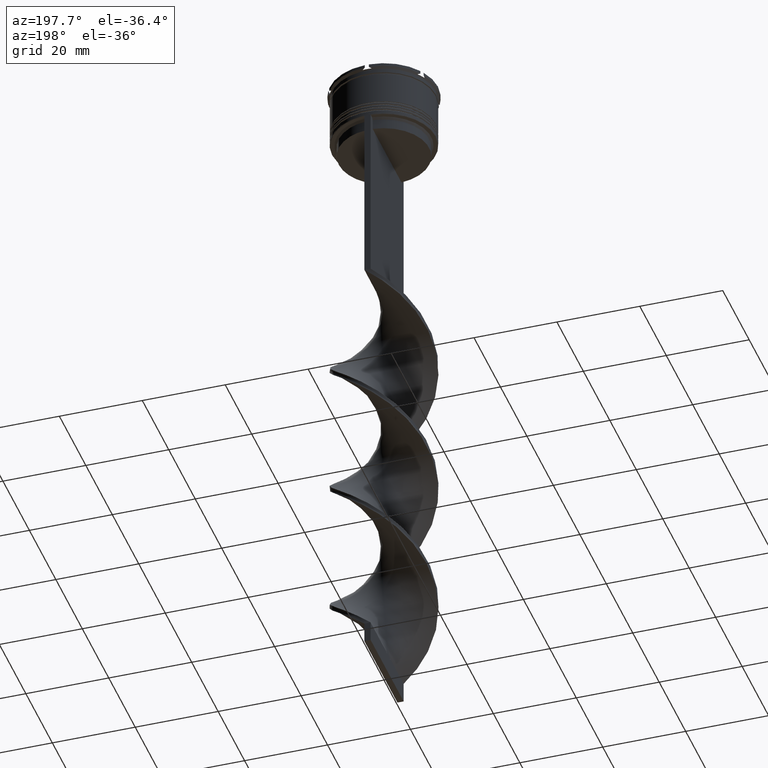
[diagram: clean part render]
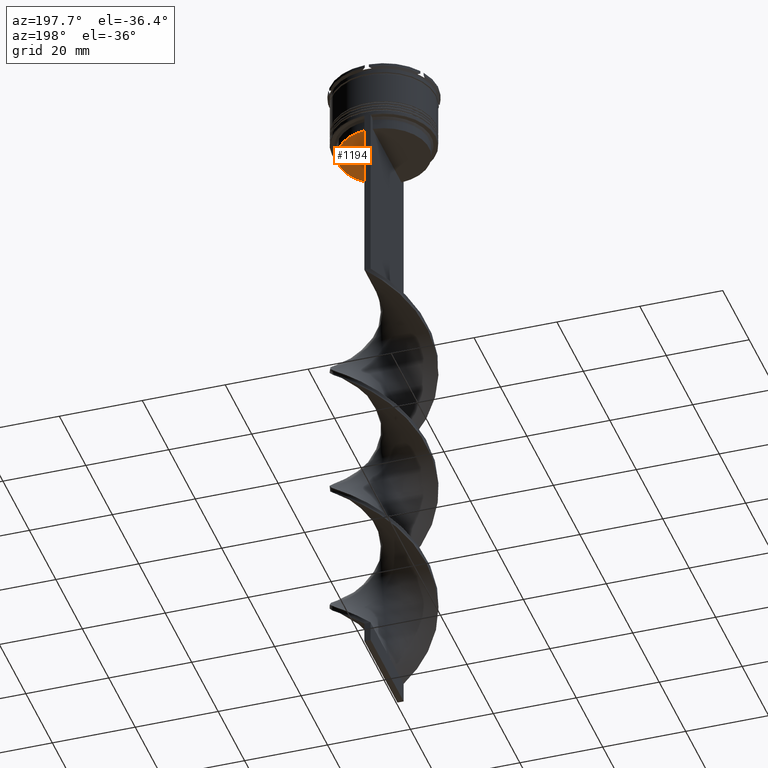
[diagram: same view with one face highlighted and labeled with its STEP entity id]
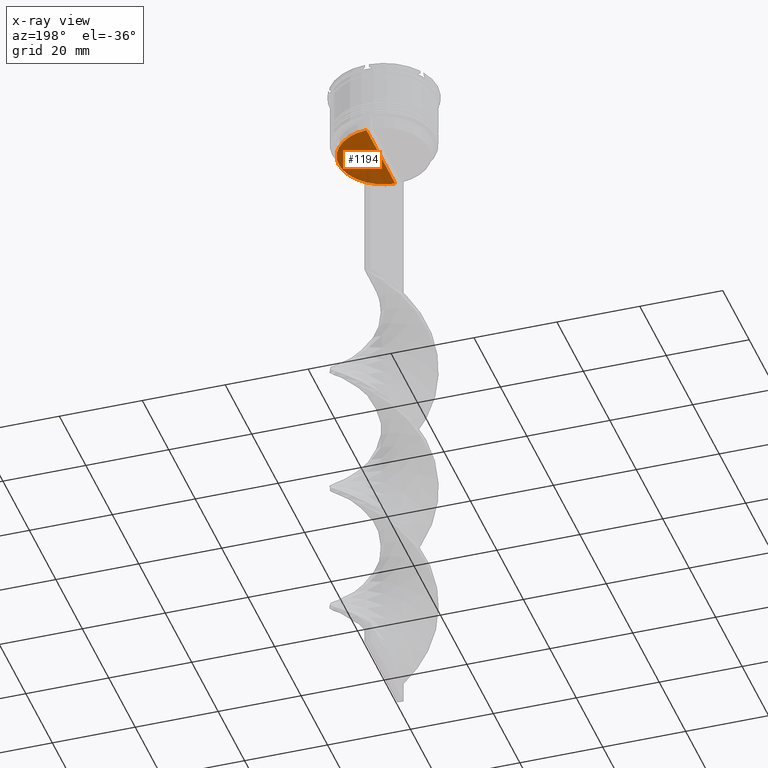
[diagram: x-ray of the same camera — body ghosted, the highlighted face saturated]
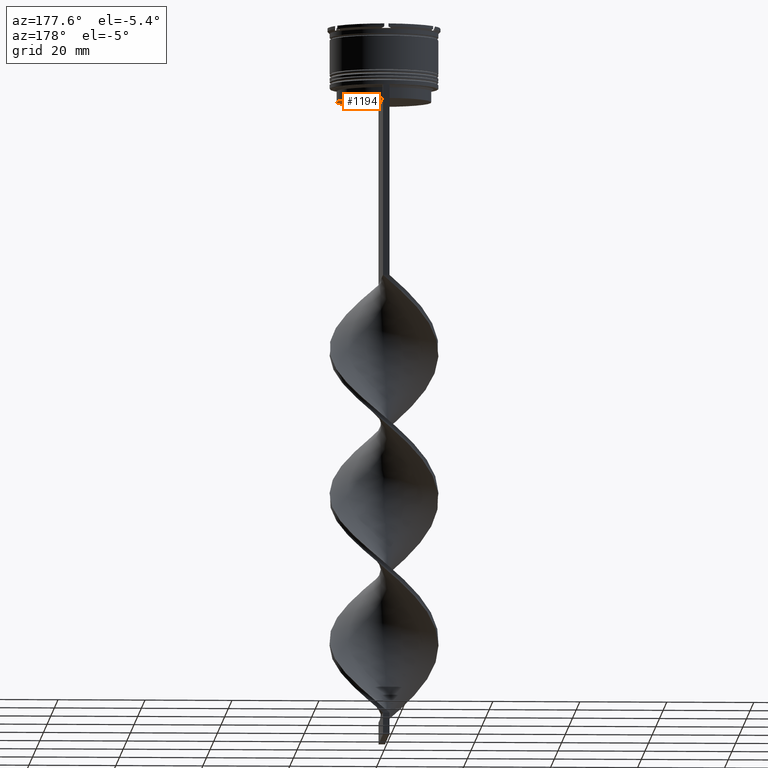
[diagram: same view with one face highlighted and labeled with its STEP entity id]
A machine part, auxiliary view. The second image highlights one B-rep face of the part: STEP entity #1194.
The next image is the same camera in x-ray: the body ghosted, the highlighted face saturated — about 16% of this face is hidden behind the body in this view.
A second angle (auxiliary view) of the same face is appended — the face is thin or edge-on in the first view.
In plain terms, the highlighted planar face has unit normal (0, -0, 1).
Its self-contained STEP definition (entity closure, byte-faithful):
#72 = CARTESIAN_POINT ( 'NONE',  ( 0.000000000000000000, 10.90000000000000213, -17.00000000000000000 ) ) ;
#185 = DIRECTION ( 'NONE',  ( 1.000000000000000000, 0.000000000000000000, 0.000000000000000000 ) ) ;
#220 = CARTESIAN_POINT ( 'NONE',  ( 0.000000000000000000, 0.000000000000000000, -17.00000000000000000 ) ) ;
#527 = VERTEX_POINT ( 'NONE', #1716 ) ;
#539 = VERTEX_POINT ( 'NONE', #3585 ) ;
#569 = VECTOR ( 'NONE', #1875, 1000.000000000000000 ) ;
#745 = FACE_OUTER_BOUND ( 'NONE', #1167, .T. ) ;
#901 = AXIS2_PLACEMENT_3D ( 'NONE', #2353, #1713, #185 ) ;
#1167 = EDGE_LOOP ( 'NONE', ( #2748, #3572, #1413 ) ) ;
#1194 = ADVANCED_FACE ( 'NONE', ( #745 ), #2033, .F. ) ;
#1413 = ORIENTED_EDGE ( 'NONE', *, *, #3197, .F. ) ;
#1636 = AXIS2_PLACEMENT_3D ( 'NONE', #220, #1878, #4088 ) ;
#1640 = CARTESIAN_POINT ( 'NONE',  ( 0.7500000000000002220, -10.87416663473574019, -17.00000000000000000 ) ) ;
#1713 = DIRECTION ( 'NONE',  ( -0.000000000000000000, -0.000000000000000000, 1.000000000000000000 ) ) ;
#1716 = CARTESIAN_POINT ( 'NONE',  ( 0.7500000000000002220, 10.87416663473574019, -17.00000000000000000 ) ) ;
#1829 = VERTEX_POINT ( 'NONE', #1640 ) ;
#1875 = DIRECTION ( 'NONE',  ( 0.000000000000000000, -1.000000000000000000, 0.000000000000000000 ) ) ;
#1878 = DIRECTION ( 'NONE',  ( -0.000000000000000000, -0.000000000000000000, 1.000000000000000000 ) ) ;
#1909 = CIRCLE ( 'NONE', #1636, 10.90000000000000213 ) ;
#2033 = PLANE ( 'NONE',  #3825 ) ;
#2055 = CIRCLE ( 'NONE', #901, 10.90000000000000213 ) ;
#2280 = LINE ( 'NONE', #2865, #569 ) ;
#2353 = CARTESIAN_POINT ( 'NONE',  ( 0.000000000000000000, 0.000000000000000000, -17.00000000000000000 ) ) ;
#2636 = DIRECTION ( 'NONE',  ( 0.000000000000000000, -0.000000000000000000, 1.000000000000000000 ) ) ;
#2748 = ORIENTED_EDGE ( 'NONE', *, *, #3412, .F. ) ;
#2865 = CARTESIAN_POINT ( 'NONE',  ( 0.7500000000000002220, 10.90000000000000213, -17.00000000000000000 ) ) ;
#3120 = EDGE_CURVE ( 'NONE', #539, #527, #2055, .T. ) ;
#3197 = EDGE_CURVE ( 'NONE', #1829, #539, #1909, .T. ) ;
#3304 = DIRECTION ( 'NONE',  ( 1.000000000000000000, 0.000000000000000000, 0.000000000000000000 ) ) ;
#3412 = EDGE_CURVE ( 'NONE', #527, #1829, #2280, .T. ) ;
#3572 = ORIENTED_EDGE ( 'NONE', *, *, #3120, .F. ) ;
#3585 = CARTESIAN_POINT ( 'NONE',  ( 10.90000000000000213, 0.000000000000000000, -17.00000000000000000 ) ) ;
#3825 = AXIS2_PLACEMENT_3D ( 'NONE', #72, #2636, #3304 ) ;
#4088 = DIRECTION ( 'NONE',  ( 1.000000000000000000, 0.000000000000000000, 0.000000000000000000 ) ) ;